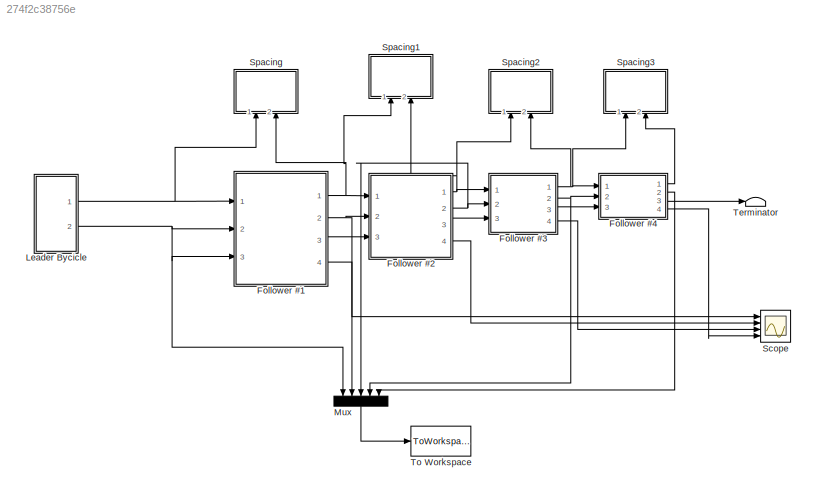
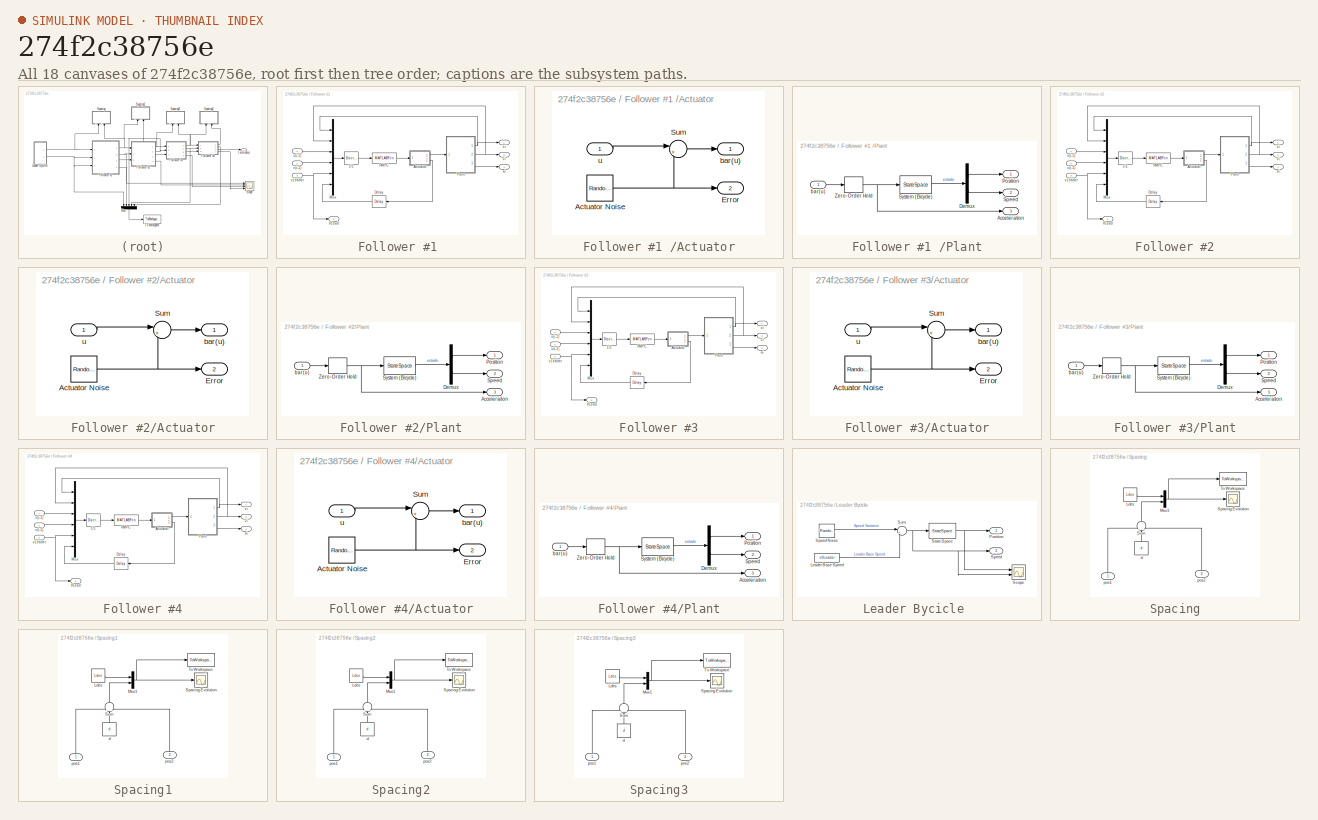
[diagram: thumbnail index - all 18 canvases of the model, root first then tree order]
MODEL slx_274f2c38756e
KIND model
CONFIG AbsTol = auto
CONFIG EnableMultiTasking = off
CONFIG FixedStep = auto
CONFIG MaxStep = auto
CONFIG MinStep = auto
CONFIG RelTol = 1e-3
CONFIG SampleTimeConstraint = Unconstrained
CONFIG Solver = VariableStepAuto
CONFIG SolverName = VariableStepAuto
CONFIG StartTime = 0.0
CONFIG StopTime = tSimulacion
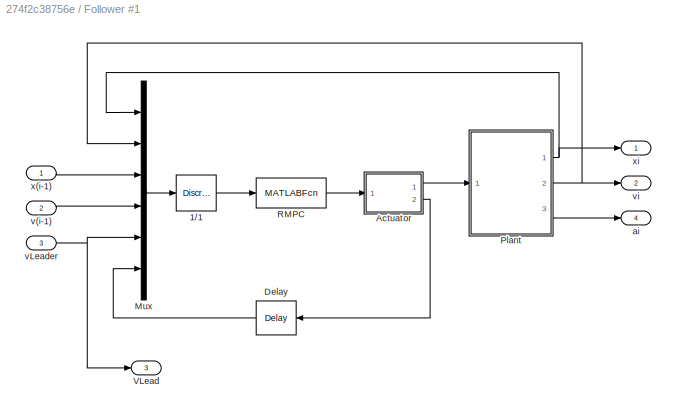
BLOCK [SubSystem] Follower #1 
  Ports = [3, 4]
  RequestExecContextInheritance = off
  Variant = off
BLOCK [DiscreteTransferFcn] Follower #1 /1//1 
  Denominator = [1]
  InputPortMap = u0
  Ports = [1, 1]
  SampleTime = ts
BLOCK [SubSystem] Follower #1 /Actuator
  Ports = [1, 2]
  RequestExecContextInheritance = off
  Variant = off
BLOCK [RandomNumber] Follower #1 /Actuator/Actuator Noise
  Mean = meanError
  SampleTime = ts
  Variance = varError
BLOCK [Outport] Follower #1 /Actuator/Error
  IconDisplay = Port number
  Port = 2
BLOCK [Sum] Follower #1 /Actuator/Sum
  IconShape = round
  InputSameDT = off
  Inputs = |++
  OutDataTypeStr = Inherit: Inherit via internal rule
  Ports = [2, 1]
  SaturateOnIntegerOverflow = off
BLOCK [Outport] Follower #1 /Actuator/bar(u)
  IconDisplay = Port number
BLOCK [Inport] Follower #1 /Actuator/u
  IconDisplay = Port number
BLOCK [Delay] Follower #1 /Delay
  DelayLength = 1
  InitialCondition = 0
  InputPortMap = u0
  Ports = [1, 1]
  SampleTime = ts
BLOCK [Mux] Follower #1 /Mux
  DisplayOption = bar
  Inputs = 6
  Ports = [6, 1]
BLOCK [SubSystem] Follower #1 /Plant
  Ports = [1, 3]
  RequestExecContextInheritance = off
  Variant = off
BLOCK [Outport] Follower #1 /Plant/Acceleration
  IconDisplay = Port number
  Port = 3
BLOCK [Demux] Follower #1 /Plant/Demux
  DisplayOption = bar
  Outputs = 2
  Ports = [1, 2]
BLOCK [Outport] Follower #1 /Plant/Position
  IconDisplay = Port number
BLOCK [Outport] Follower #1 /Plant/Speed 
  IconDisplay = Port number
  Port = 2
BLOCK [StateSpace] Follower #1 /Plant/System (Bicycle) 
  A = Acont
  B = Bcont
  C = Ccont
  ContinuousStateAttributes = 'Position'
  D = Dcont
  Ports = [1, 1]
  X0 = [x0Bici1,v0Bici1]
BLOCK [ZeroOrderHold] Follower #1 /Plant/Zero-Order Hold
  SampleTime = ts
BLOCK [Inport] Follower #1 /Plant/bar(u)
  IconDisplay = Port number
BLOCK [MATLABFcn] Follower #1 /RMPC
  MATLABFcn = solveRMPC(u(1),u(2),u(3),u(4),u(5),u(6),MError,nPasos,Ldes,Ades,bdes)
  OutputDimensions = 1
  OutputSignalType = real
  Ports = [1, 1]
BLOCK [Outport] Follower #1 /VLead
  IconDisplay = Port number
  Port = 3
BLOCK [Outport] Follower #1 /ai
  IconDisplay = Port number
  Port = 4
BLOCK [Inport] Follower #1 /v(i-1)
  IconDisplay = Port number
  Port = 2
BLOCK [Inport] Follower #1 /vLeader
  IconDisplay = Port number
  Port = 3
BLOCK [Outport] Follower #1 /vi
  IconDisplay = Port number
  Port = 2
BLOCK [Inport] Follower #1 /x(i-1)
  IconDisplay = Port number
BLOCK [Outport] Follower #1 /xi
  IconDisplay = Port number
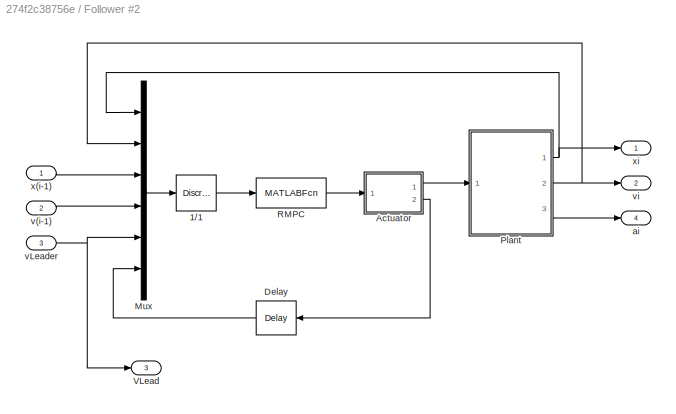
BLOCK [SubSystem] Follower #2
  Ports = [3, 4]
  RequestExecContextInheritance = off
  Variant = off
BLOCK [DiscreteTransferFcn] Follower #2/1//1 
  Denominator = [1]
  InputPortMap = u0
  Ports = [1, 1]
  SampleTime = ts
BLOCK [SubSystem] Follower #2/Actuator
  Ports = [1, 2]
  RequestExecContextInheritance = off
  Variant = off
BLOCK [RandomNumber] Follower #2/Actuator/Actuator Noise
  Mean = meanError
  SampleTime = ts
  Variance = varError
BLOCK [Outport] Follower #2/Actuator/Error
  IconDisplay = Port number
  Port = 2
BLOCK [Sum] Follower #2/Actuator/Sum
  IconShape = round
  InputSameDT = off
  Inputs = |++
  OutDataTypeStr = Inherit: Inherit via internal rule
  Ports = [2, 1]
  SaturateOnIntegerOverflow = off
BLOCK [Outport] Follower #2/Actuator/bar(u)
  IconDisplay = Port number
BLOCK [Inport] Follower #2/Actuator/u
  IconDisplay = Port number
BLOCK [Delay] Follower #2/Delay
  DelayLength = 1
  InitialCondition = 0
  InputPortMap = u0
  Ports = [1, 1]
  SampleTime = ts
BLOCK [Mux] Follower #2/Mux
  DisplayOption = bar
  Inputs = 6
  Ports = [6, 1]
BLOCK [SubSystem] Follower #2/Plant
  Ports = [1, 3]
  RequestExecContextInheritance = off
  Variant = off
BLOCK [Outport] Follower #2/Plant/Acceleration
  IconDisplay = Port number
  Port = 3
BLOCK [Demux] Follower #2/Plant/Demux
  DisplayOption = bar
  Outputs = 2
  Ports = [1, 2]
BLOCK [Outport] Follower #2/Plant/Position
  IconDisplay = Port number
BLOCK [Outport] Follower #2/Plant/Speed 
  IconDisplay = Port number
  Port = 2
BLOCK [StateSpace] Follower #2/Plant/System (Bicycle) 
  A = Acont
  B = Bcont
  C = Ccont
  ContinuousStateAttributes = 'Position'
  D = Dcont
  Ports = [1, 1]
  X0 = [x0Bici2,v0Bici2]
BLOCK [ZeroOrderHold] Follower #2/Plant/Zero-Order Hold
  SampleTime = ts
BLOCK [Inport] Follower #2/Plant/bar(u)
  IconDisplay = Port number
BLOCK [MATLABFcn] Follower #2/RMPC
  MATLABFcn = solveRMPC(u(1),u(2),u(3),u(4),u(5),u(6),MError,nPasos,Ldes,Ades,bdes)
  OutputDimensions = 1
  OutputSignalType = real
  Ports = [1, 1]
BLOCK [Outport] Follower #2/VLead
  IconDisplay = Port number
  Port = 3
BLOCK [Outport] Follower #2/ai
  IconDisplay = Port number
  Port = 4
BLOCK [Inport] Follower #2/v(i-1)
  IconDisplay = Port number
  Port = 2
BLOCK [Inport] Follower #2/vLeader
  IconDisplay = Port number
  Port = 3
BLOCK [Outport] Follower #2/vi
  IconDisplay = Port number
  Port = 2
BLOCK [Inport] Follower #2/x(i-1)
  IconDisplay = Port number
BLOCK [Outport] Follower #2/xi
  IconDisplay = Port number
BLOCK [SubSystem] Follower #3
  Ports = [3, 4]
  RequestExecContextInheritance = off
  Variant = off
BLOCK [DiscreteTransferFcn] Follower #3/1//1 
  Denominator = [1]
  InputPortMap = u0
  Ports = [1, 1]
  SampleTime = ts
BLOCK [SubSystem] Follower #3/Actuator
  Ports = [1, 2]
  RequestExecContextInheritance = off
  Variant = off
BLOCK [RandomNumber] Follower #3/Actuator/Actuator Noise
  Mean = meanError
  SampleTime = ts
  Variance = varError
BLOCK [Outport] Follower #3/Actuator/Error
  IconDisplay = Port number
  Port = 2
BLOCK [Sum] Follower #3/Actuator/Sum
  IconShape = round
  InputSameDT = off
  Inputs = |++
  OutDataTypeStr = Inherit: Inherit via internal rule
  Ports = [2, 1]
  SaturateOnIntegerOverflow = off
BLOCK [Outport] Follower #3/Actuator/bar(u)
  IconDisplay = Port number
BLOCK [Inport] Follower #3/Actuator/u
  IconDisplay = Port number
BLOCK [Delay] Follower #3/Delay
  DelayLength = 1
  InitialCondition = 0
  InputPortMap = u0
  Ports = [1, 1]
  SampleTime = ts
BLOCK [Mux] Follower #3/Mux
  DisplayOption = bar
  Inputs = 6
  Ports = [6, 1]
BLOCK [SubSystem] Follower #3/Plant
  Ports = [1, 3]
  RequestExecContextInheritance = off
  Variant = off
BLOCK [Outport] Follower #3/Plant/Acceleration
  IconDisplay = Port number
  Port = 3
BLOCK [Demux] Follower #3/Plant/Demux
  DisplayOption = bar
  Outputs = 2
  Ports = [1, 2]
BLOCK [Outport] Follower #3/Plant/Position
  IconDisplay = Port number
BLOCK [Outport] Follower #3/Plant/Speed 
  IconDisplay = Port number
  Port = 2
BLOCK [StateSpace] Follower #3/Plant/System (Bicycle) 
  A = Acont
  B = Bcont
  C = Ccont
  ContinuousStateAttributes = 'Position'
  D = Dcont
  Ports = [1, 1]
  X0 = [x0Bici3,v0Bici3]
BLOCK [ZeroOrderHold] Follower #3/Plant/Zero-Order Hold
  SampleTime = ts
BLOCK [Inport] Follower #3/Plant/bar(u)
  IconDisplay = Port number
BLOCK [MATLABFcn] Follower #3/RMPC
  MATLABFcn = solveRMPC(u(1),u(2),u(3),u(4),u(5),u(6),MError,nPasos,Ldes,Ades,bdes)
  OutputDimensions = 1
  OutputSignalType = real
  Ports = [1, 1]
BLOCK [Outport] Follower #3/VLead
  IconDisplay = Port number
  Port = 3
BLOCK [Outport] Follower #3/ai
  IconDisplay = Port number
  Port = 4
BLOCK [Inport] Follower #3/v(i-1)
  IconDisplay = Port number
  Port = 2
BLOCK [Inport] Follower #3/vLeader
  IconDisplay = Port number
  Port = 3
BLOCK [Outport] Follower #3/vi
  IconDisplay = Port number
  Port = 2
BLOCK [Inport] Follower #3/x(i-1)
  IconDisplay = Port number
BLOCK [Outport] Follower #3/xi
  IconDisplay = Port number
BLOCK [SubSystem] Follower #4
  Ports = [3, 4]
  RequestExecContextInheritance = off
  Variant = off
BLOCK [DiscreteTransferFcn] Follower #4/1//1 
  Denominator = [1]
  InputPortMap = u0
  Ports = [1, 1]
  SampleTime = ts
BLOCK [SubSystem] Follower #4/Actuator
  Ports = [1, 2]
  RequestExecContextInheritance = off
  Variant = off
BLOCK [RandomNumber] Follower #4/Actuator/Actuator Noise
  Mean = meanError
  SampleTime = ts
  Variance = varError
BLOCK [Outport] Follower #4/Actuator/Error
  IconDisplay = Port number
  Port = 2
BLOCK [Sum] Follower #4/Actuator/Sum
  IconShape = round
  InputSameDT = off
  Inputs = |++
  OutDataTypeStr = Inherit: Inherit via internal rule
  Ports = [2, 1]
  SaturateOnIntegerOverflow = off
BLOCK [Outport] Follower #4/Actuator/bar(u)
  IconDisplay = Port number
BLOCK [Inport] Follower #4/Actuator/u
  IconDisplay = Port number
BLOCK [Delay] Follower #4/Delay
  DelayLength = 1
  InitialCondition = 0
  InputPortMap = u0
  Ports = [1, 1]
  SampleTime = ts
BLOCK [Mux] Follower #4/Mux
  DisplayOption = bar
  Inputs = 6
  Ports = [6, 1]
BLOCK [SubSystem] Follower #4/Plant
  Ports = [1, 3]
  RequestExecContextInheritance = off
  Variant = off
BLOCK [Outport] Follower #4/Plant/Acceleration
  IconDisplay = Port number
  Port = 3
BLOCK [Demux] Follower #4/Plant/Demux
  DisplayOption = bar
  Outputs = 2
  Ports = [1, 2]
BLOCK [Outport] Follower #4/Plant/Position
  IconDisplay = Port number
BLOCK [Outport] Follower #4/Plant/Speed 
  IconDisplay = Port number
  Port = 2
BLOCK [StateSpace] Follower #4/Plant/System (Bicycle) 
  A = Acont
  B = Bcont
  C = Ccont
  ContinuousStateAttributes = 'Position'
  D = Dcont
  Ports = [1, 1]
  X0 = [x0Bici4,v0Bici4]
BLOCK [ZeroOrderHold] Follower #4/Plant/Zero-Order Hold
  SampleTime = ts
BLOCK [Inport] Follower #4/Plant/bar(u)
  IconDisplay = Port number
BLOCK [MATLABFcn] Follower #4/RMPC
  MATLABFcn = solveRMPC(u(1),u(2),u(3),u(4),u(5),u(6),MError,nPasos,Ldes,Ades,bdes)
  OutputDimensions = 1
  OutputSignalType = real
  Ports = [1, 1]
BLOCK [Outport] Follower #4/VLead
  IconDisplay = Port number
  Port = 3
BLOCK [Outport] Follower #4/ai
  IconDisplay = Port number
  Port = 4
BLOCK [Inport] Follower #4/v(i-1)
  IconDisplay = Port number
  Port = 2
BLOCK [Inport] Follower #4/vLeader
  IconDisplay = Port number
  Port = 3
BLOCK [Outport] Follower #4/vi
  IconDisplay = Port number
  Port = 2
BLOCK [Inport] Follower #4/x(i-1)
  IconDisplay = Port number
BLOCK [Outport] Follower #4/xi
  IconDisplay = Port number
BLOCK [SubSystem] Leader Bycicle 
  Ports = [0, 2]
  RequestExecContextInheritance = off
  Variant = off
BLOCK [Constant] Leader Bycicle /Leader Base Speed 
  Value = v0Leader
BLOCK [Outport] Leader Bycicle /Position
  IconDisplay = Port number
BLOCK [Scope] Leader Bycicle /Scope
  NumInputPorts = 2
  Ports = [2]
  ScopeSpecificationString = Simulink.scopes.TimeScopeBlockCfg('CurrentConfiguration', extmgr.ConfigurationSet(extmgr.Configuration('Core','General UI',true),extmgr.Configuration('Core','Source UI',true),extmgr.Configuration('Sources','WiredSimulink',true),extmgr.Configuration('Visuals','Time Domain',true,'SerializedDisplays',{struct('MinYLimReal','-43.30709','MaxYLimReal','415.60851','YLabelReal','','MinYLimMag','0.00000','M...<+1353ch>
BLOCK [Outport] Leader Bycicle /Speed
  IconDisplay = Port number
  Port = 2
BLOCK [RandomNumber] Leader Bycicle /Speed Noise
  SampleTime = ts
  Variance = 0.02
BLOCK [StateSpace] Leader Bycicle /State-Space
  A = [0]
  B = [1]
  C = [1]
  ContinuousStateAttributes = 'position'
  D = [0]
  Ports = [1, 1]
  X0 = [x0Leader]
BLOCK [Sum] Leader Bycicle /Sum
  IconShape = round
  InputSameDT = off
  Inputs = |++
  OutDataTypeStr = Inherit: Inherit via internal rule
  Ports = [2, 1]
  SaturateOnIntegerOverflow = off
BLOCK [Mux] Mux
  DisplayOption = bar
  Inputs = 5
  Ports = [5, 1]
BLOCK [Scope] Scope
  NumInputPorts = 4
  Ports = [4]
  ScopeSpecificationString = Simulink.scopes.TimeScopeBlockCfg('CurrentConfiguration', extmgr.ConfigurationSet(extmgr.Configuration('Core','General UI',true),extmgr.Configuration('Core','Source UI',true),extmgr.Configuration('Sources','WiredSimulink',true,'DataLoggingVariableName','ScopeData2'),extmgr.Configuration('Visuals','Time Domain',true),extmgr.Configuration('Tools','Plot Navigation',true),extmgr.Configuration('Tools',...<+40ch>
BLOCK [SubSystem] Spacing
  Ports = [2]
  RequestExecContextInheritance = off
  Variant = off
BLOCK [Constant] Spacing/Ldes
  Value = Ldes
BLOCK [Mux] Spacing/Mux1
  DisplayOption = bar
  Inputs = 2
  Ports = [2, 1]
BLOCK [Scope] Spacing/Spacing Evolution
  NumInputPorts = 1
  Ports = [1]
  ScopeSpecificationString = Simulink.scopes.TimeScopeBlockCfg('CurrentConfiguration', extmgr.ConfigurationSet(extmgr.Configuration('Core','General UI',true),extmgr.Configuration('Core','Source UI',true),extmgr.Configuration('Sources','WiredSimulink',true,'DataLoggingVariableName','ScopeData1'),extmgr.Configuration('Visuals','Time Domain',true,'SerializedDisplays',{struct('MinYLimReal','2.86475','MaxYLimReal','11.56373','YLab...<+1442ch>  <repeated x4 — deduplicated; at blocks: Spacing Evolution>
BLOCK [Sum] Spacing/Sum
  IconShape = round
  InputSameDT = off
  Inputs = +--
  OutDataTypeStr = Inherit: Inherit via internal rule
  Ports = [3, 1]
  SaturateOnIntegerOverflow = off
BLOCK [ToWorkspace] Spacing/To Workspace
  FixptAsFi = on
  MaxDataPoints = inf
  Ports = [1]
  SampleTime = -1
  Save2DSignal = 3-D array (concatenate along third dimension)
  SaveFormat = Timeseries
  VariableName = spacing
BLOCK [Constant] Spacing/d 
  Value = d
BLOCK [Inport] Spacing/pos1
  IconDisplay = Port number
BLOCK [Inport] Spacing/pos2
  IconDisplay = Port number
  Port = 2
BLOCK [SubSystem] Spacing1
  Ports = [2]
  RequestExecContextInheritance = off
  Variant = off
BLOCK [Constant] Spacing1/Ldes
  Value = Ldes
BLOCK [Mux] Spacing1/Mux1
  DisplayOption = bar
  Inputs = 2
  Ports = [2, 1]
BLOCK [Scope] Spacing1/Spacing Evolution
  NumInputPorts = 1
  Ports = [1]
BLOCK [Sum] Spacing1/Sum
  IconShape = round
  InputSameDT = off
  Inputs = +--
  OutDataTypeStr = Inherit: Inherit via internal rule
  Ports = [3, 1]
  SaturateOnIntegerOverflow = off
BLOCK [ToWorkspace] Spacing1/To Workspace
  FixptAsFi = on
  MaxDataPoints = inf
  Ports = [1]
  SampleTime = -1
  Save2DSignal = 3-D array (concatenate along third dimension)
  SaveFormat = Timeseries
  VariableName = spacing2
BLOCK [Constant] Spacing1/d 
  Value = d
BLOCK [Inport] Spacing1/pos1
  IconDisplay = Port number
BLOCK [Inport] Spacing1/pos2
  IconDisplay = Port number
  Port = 2
BLOCK [SubSystem] Spacing2
  Ports = [2]
  RequestExecContextInheritance = off
  Variant = off
BLOCK [Constant] Spacing2/Ldes
  Value = Ldes
BLOCK [Mux] Spacing2/Mux1
  DisplayOption = bar
  Inputs = 2
  Ports = [2, 1]
BLOCK [Scope] Spacing2/Spacing Evolution
  NumInputPorts = 1
  Ports = [1]
BLOCK [Sum] Spacing2/Sum
  IconShape = round
  InputSameDT = off
  Inputs = +--
  OutDataTypeStr = Inherit: Inherit via internal rule
  Ports = [3, 1]
  SaturateOnIntegerOverflow = off
BLOCK [ToWorkspace] Spacing2/To Workspace
  FixptAsFi = on
  MaxDataPoints = inf
  Ports = [1]
  SampleTime = -1
  Save2DSignal = 3-D array (concatenate along third dimension)
  SaveFormat = Timeseries
  VariableName = spacing3
BLOCK [Constant] Spacing2/d 
  Value = d
BLOCK [Inport] Spacing2/pos1
  IconDisplay = Port number
BLOCK [Inport] Spacing2/pos2
  IconDisplay = Port number
  Port = 2
BLOCK [SubSystem] Spacing3
  Ports = [2]
  RequestExecContextInheritance = off
  Variant = off
BLOCK [Constant] Spacing3/Ldes
  Value = Ldes
BLOCK [Mux] Spacing3/Mux1
  DisplayOption = bar
  Inputs = 2
  Ports = [2, 1]
BLOCK [Scope] Spacing3/Spacing Evolution
  NumInputPorts = 1
  Ports = [1]
BLOCK [Sum] Spacing3/Sum
  IconShape = round
  InputSameDT = off
  Inputs = +--
  OutDataTypeStr = Inherit: Inherit via internal rule
  Ports = [3, 1]
  SaturateOnIntegerOverflow = off
BLOCK [ToWorkspace] Spacing3/To Workspace
  FixptAsFi = on
  MaxDataPoints = inf
  Ports = [1]
  SampleTime = -1
  Save2DSignal = 3-D array (concatenate along third dimension)
  SaveFormat = Timeseries
  VariableName = spacing4
BLOCK [Constant] Spacing3/d 
  Value = d
BLOCK [Inport] Spacing3/pos1
  IconDisplay = Port number
BLOCK [Inport] Spacing3/pos2
  IconDisplay = Port number
  Port = 2
BLOCK [Terminator] Terminator
BLOCK [ToWorkspace] To Workspace
  FixptAsFi = on
  MaxDataPoints = inf
  Ports = [1]
  SampleTime = -1
  Save2DSignal = 3-D array (concatenate along third dimension)
  SaveFormat = Timeseries
  VariableName = speed
LINE Follower #1 /1//1 :1 -> Follower #1 /RMPC:1
NET Follower #1 /Actuator/Actuator Noise:1 -> Follower #1 /Actuator/Error:1, Follower #1 /Actuator/Sum:2
LINE Follower #1 /Actuator/Sum:1 -> Follower #1 /Actuator/bar(u):1
LINE Follower #1 /Actuator/u:1 -> Follower #1 /Actuator/Sum:1
LINE Follower #1 /Actuator:1 -> Follower #1 /Plant:1
LINE Follower #1 /Actuator:2 -> Follower #1 /Delay:1
LINE Follower #1 /Delay:1 -> Follower #1 /Mux:6
LINE Follower #1 /Mux:1 -> Follower #1 /1//1 :1
LINE Follower #1 /Plant/Demux:1 -> Follower #1 /Plant/Position:1
LINE Follower #1 /Plant/Demux:2 -> Follower #1 /Plant/Speed :1
LINE Follower #1 /Plant/System (Bicycle) :1 -> Follower #1 /Plant/Demux:1
NET Follower #1 /Plant/Zero-Order Hold:1 -> Follower #1 /Plant/Acceleration:1, Follower #1 /Plant/System (Bicycle) :1
LINE Follower #1 /Plant/bar(u):1 -> Follower #1 /Plant/Zero-Order Hold:1
NET Follower #1 /Plant:1 -> Follower #1 /Mux:1, Follower #1 /xi:1
NET Follower #1 /Plant:2 -> Follower #1 /Mux:2, Follower #1 /vi:1
LINE Follower #1 /Plant:3 -> Follower #1 /ai:1
LINE Follower #1 /RMPC:1 -> Follower #1 /Actuator:1
LINE Follower #1 /v(i-1):1 -> Follower #1 /Mux:4
NET Follower #1 /vLeader:1 -> Follower #1 /Mux:5, Follower #1 /VLead:1
LINE Follower #1 /x(i-1):1 -> Follower #1 /Mux:3
NET Follower #1 :1 -> Follower #2:1, Spacing1:1, Spacing:2
NET Follower #1 :2 -> Follower #2:2, Mux:2
LINE Follower #1 :3 -> Follower #2:3
LINE Follower #1 :4 -> Scope:1
LINE Follower #2/1//1 :1 -> Follower #2/RMPC:1
NET Follower #2/Actuator/Actuator Noise:1 -> Follower #2/Actuator/Error:1, Follower #2/Actuator/Sum:2
LINE Follower #2/Actuator/Sum:1 -> Follower #2/Actuator/bar(u):1
LINE Follower #2/Actuator/u:1 -> Follower #2/Actuator/Sum:1
LINE Follower #2/Actuator:1 -> Follower #2/Plant:1
LINE Follower #2/Actuator:2 -> Follower #2/Delay:1
LINE Follower #2/Delay:1 -> Follower #2/Mux:6
LINE Follower #2/Mux:1 -> Follower #2/1//1 :1
LINE Follower #2/Plant/Demux:1 -> Follower #2/Plant/Position:1
LINE Follower #2/Plant/Demux:2 -> Follower #2/Plant/Speed :1
LINE Follower #2/Plant/System (Bicycle) :1 -> Follower #2/Plant/Demux:1
NET Follower #2/Plant/Zero-Order Hold:1 -> Follower #2/Plant/Acceleration:1, Follower #2/Plant/System (Bicycle) :1
LINE Follower #2/Plant/bar(u):1 -> Follower #2/Plant/Zero-Order Hold:1
NET Follower #2/Plant:1 -> Follower #2/Mux:1, Follower #2/xi:1
NET Follower #2/Plant:2 -> Follower #2/Mux:2, Follower #2/vi:1
LINE Follower #2/Plant:3 -> Follower #2/ai:1
LINE Follower #2/RMPC:1 -> Follower #2/Actuator:1
LINE Follower #2/v(i-1):1 -> Follower #2/Mux:4
NET Follower #2/vLeader:1 -> Follower #2/Mux:5, Follower #2/VLead:1
LINE Follower #2/x(i-1):1 -> Follower #2/Mux:3
NET Follower #2:1 -> Follower #3:1, Spacing1:2, Spacing2:1
NET Follower #2:2 -> Follower #3:2, Mux:3
LINE Follower #2:3 -> Follower #3:3
LINE Follower #2:4 -> Scope:2
LINE Follower #3/1//1 :1 -> Follower #3/RMPC:1
NET Follower #3/Actuator/Actuator Noise:1 -> Follower #3/Actuator/Error:1, Follower #3/Actuator/Sum:2
LINE Follower #3/Actuator/Sum:1 -> Follower #3/Actuator/bar(u):1
LINE Follower #3/Actuator/u:1 -> Follower #3/Actuator/Sum:1
LINE Follower #3/Actuator:1 -> Follower #3/Plant:1
LINE Follower #3/Actuator:2 -> Follower #3/Delay:1
LINE Follower #3/Delay:1 -> Follower #3/Mux:6
LINE Follower #3/Mux:1 -> Follower #3/1//1 :1
LINE Follower #3/Plant/Demux:1 -> Follower #3/Plant/Position:1
LINE Follower #3/Plant/Demux:2 -> Follower #3/Plant/Speed :1
LINE Follower #3/Plant/System (Bicycle) :1 -> Follower #3/Plant/Demux:1
NET Follower #3/Plant/Zero-Order Hold:1 -> Follower #3/Plant/Acceleration:1, Follower #3/Plant/System (Bicycle) :1
LINE Follower #3/Plant/bar(u):1 -> Follower #3/Plant/Zero-Order Hold:1
NET Follower #3/Plant:1 -> Follower #3/Mux:1, Follower #3/xi:1
NET Follower #3/Plant:2 -> Follower #3/Mux:2, Follower #3/vi:1
LINE Follower #3/Plant:3 -> Follower #3/ai:1
LINE Follower #3/RMPC:1 -> Follower #3/Actuator:1
LINE Follower #3/v(i-1):1 -> Follower #3/Mux:4
NET Follower #3/vLeader:1 -> Follower #3/Mux:5, Follower #3/VLead:1
LINE Follower #3/x(i-1):1 -> Follower #3/Mux:3
NET Follower #3:1 -> Follower #4:1, Spacing2:2, Spacing3:1
NET Follower #3:2 -> Follower #4:2, Mux:4
LINE Follower #3:3 -> Follower #4:3
LINE Follower #3:4 -> Scope:3
LINE Follower #4/1//1 :1 -> Follower #4/RMPC:1
NET Follower #4/Actuator/Actuator Noise:1 -> Follower #4/Actuator/Error:1, Follower #4/Actuator/Sum:2
LINE Follower #4/Actuator/Sum:1 -> Follower #4/Actuator/bar(u):1
LINE Follower #4/Actuator/u:1 -> Follower #4/Actuator/Sum:1
LINE Follower #4/Actuator:1 -> Follower #4/Plant:1
LINE Follower #4/Actuator:2 -> Follower #4/Delay:1
LINE Follower #4/Delay:1 -> Follower #4/Mux:6
LINE Follower #4/Mux:1 -> Follower #4/1//1 :1
LINE Follower #4/Plant/Demux:1 -> Follower #4/Plant/Position:1
LINE Follower #4/Plant/Demux:2 -> Follower #4/Plant/Speed :1
LINE Follower #4/Plant/System (Bicycle) :1 -> Follower #4/Plant/Demux:1
NET Follower #4/Plant/Zero-Order Hold:1 -> Follower #4/Plant/Acceleration:1, Follower #4/Plant/System (Bicycle) :1
LINE Follower #4/Plant/bar(u):1 -> Follower #4/Plant/Zero-Order Hold:1
NET Follower #4/Plant:1 -> Follower #4/Mux:1, Follower #4/xi:1
NET Follower #4/Plant:2 -> Follower #4/Mux:2, Follower #4/vi:1
LINE Follower #4/Plant:3 -> Follower #4/ai:1
LINE Follower #4/RMPC:1 -> Follower #4/Actuator:1
LINE Follower #4/v(i-1):1 -> Follower #4/Mux:4
NET Follower #4/vLeader:1 -> Follower #4/Mux:5, Follower #4/VLead:1
LINE Follower #4/x(i-1):1 -> Follower #4/Mux:3
LINE Follower #4:1 -> Spacing3:2
LINE Follower #4:2 -> Mux:5
LINE Follower #4:3 -> Terminator:1
LINE Follower #4:4 -> Scope:4
LINE Leader Bycicle /Leader Base Speed :1 -> Leader Bycicle /Sum:2
LINE Leader Bycicle /Speed Noise:1 -> Leader Bycicle /Sum:1
NET Leader Bycicle /State-Space:1 -> Leader Bycicle /Position:1, Leader Bycicle /Scope:1
NET Leader Bycicle /Sum:1 -> Leader Bycicle /Scope:2, Leader Bycicle /Speed:1, Leader Bycicle /State-Space:1
NET Leader Bycicle :1 -> Follower #1 :1, Spacing:1
NET Leader Bycicle :2 -> Follower #1 :2, Follower #1 :3, Mux:1
LINE Mux:1 -> To Workspace:1
LINE Spacing/Ldes:1 -> Spacing/Mux1:1
NET Spacing/Mux1:1 -> Spacing/Spacing Evolution:1, Spacing/To Workspace:1
LINE Spacing/Sum:1 -> Spacing/Mux1:2
LINE Spacing/d :1 -> Spacing/Sum:2
LINE Spacing/pos1:1 -> Spacing/Sum:1
LINE Spacing/pos2:1 -> Spacing/Sum:3
LINE Spacing1/Ldes:1 -> Spacing1/Mux1:1
NET Spacing1/Mux1:1 -> Spacing1/Spacing Evolution:1, Spacing1/To Workspace:1
LINE Spacing1/Sum:1 -> Spacing1/Mux1:2
LINE Spacing1/d :1 -> Spacing1/Sum:2
LINE Spacing1/pos1:1 -> Spacing1/Sum:1
LINE Spacing1/pos2:1 -> Spacing1/Sum:3
LINE Spacing2/Ldes:1 -> Spacing2/Mux1:1
NET Spacing2/Mux1:1 -> Spacing2/Spacing Evolution:1, Spacing2/To Workspace:1
LINE Spacing2/Sum:1 -> Spacing2/Mux1:2
LINE Spacing2/d :1 -> Spacing2/Sum:2
LINE Spacing2/pos1:1 -> Spacing2/Sum:1
LINE Spacing2/pos2:1 -> Spacing2/Sum:3
LINE Spacing3/Ldes:1 -> Spacing3/Mux1:1
NET Spacing3/Mux1:1 -> Spacing3/Spacing Evolution:1, Spacing3/To Workspace:1
LINE Spacing3/Sum:1 -> Spacing3/Mux1:2
LINE Spacing3/d :1 -> Spacing3/Sum:2
LINE Spacing3/pos1:1 -> Spacing3/Sum:1
LINE Spacing3/pos2:1 -> Spacing3/Sum:3
note: NET lines group one-source signal fan-out (src -> all destinations, sorted); 1:1 wires keep LINE
